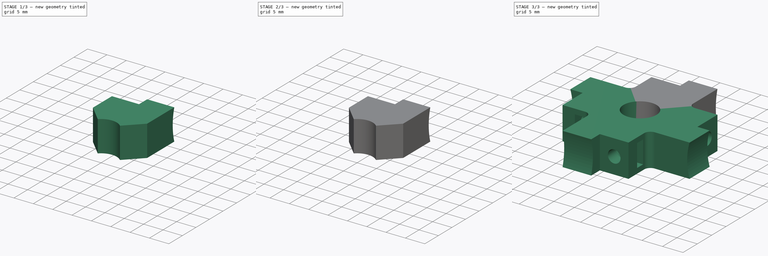
[diagram: build sequence overview — one tinted view per stage of 3, left to right]
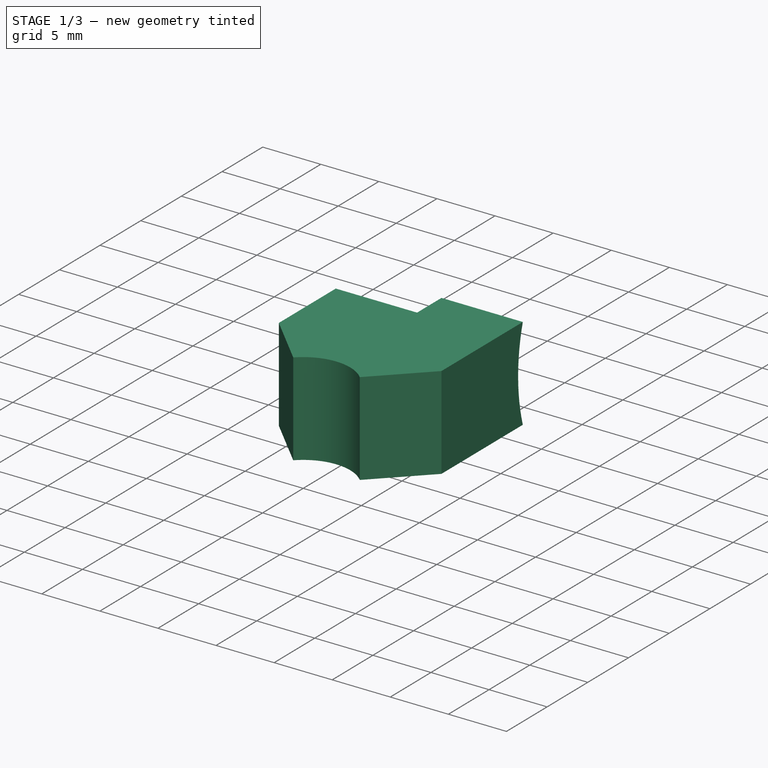
[diagram: stage 1 of 3 — iso view after this stage's code; geometry added in this stage tinted green]
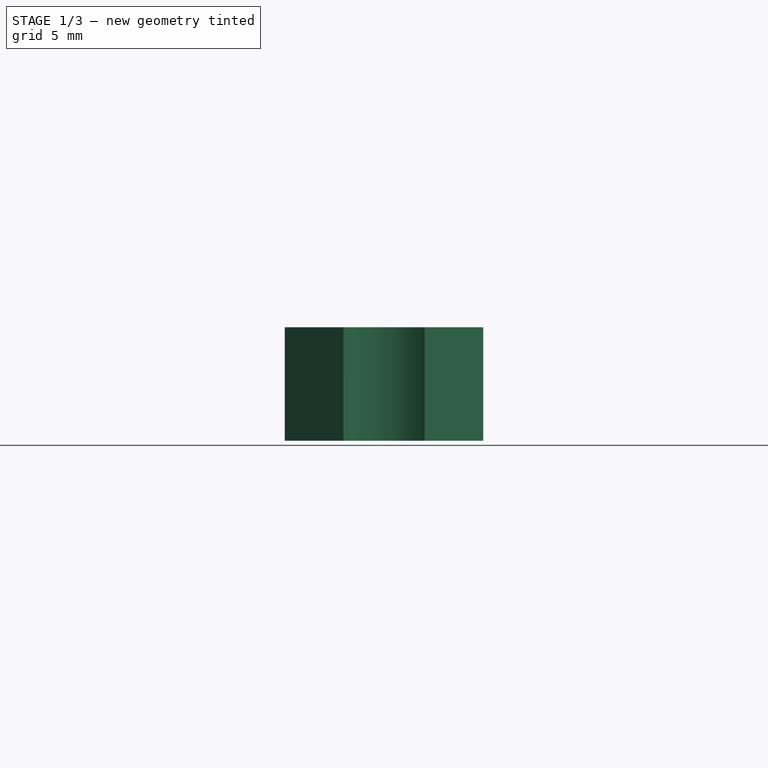
[diagram: stage 1 of 3 — front view after this stage's code; geometry added in this stage tinted green]
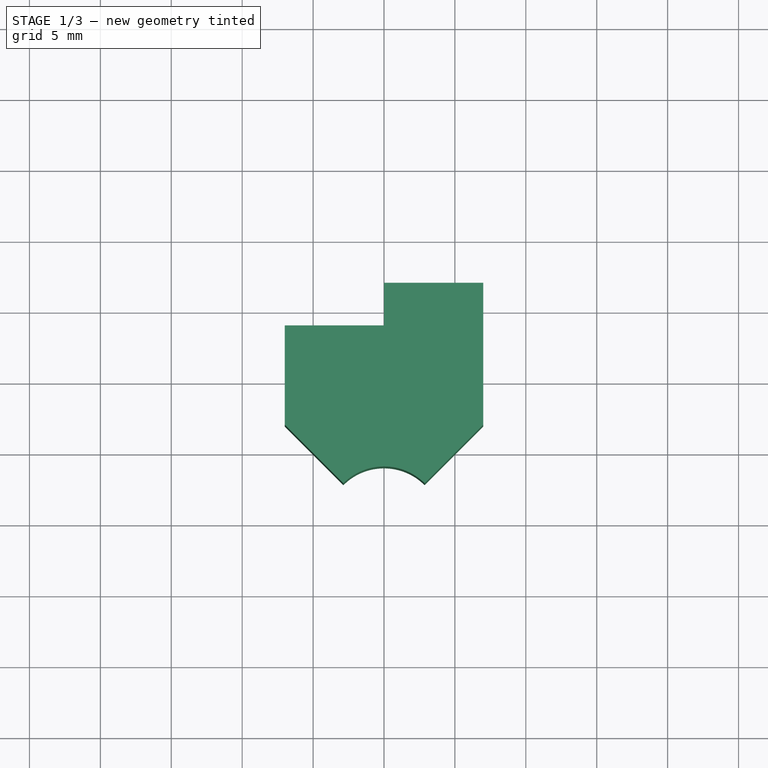
[diagram: stage 1 of 3 — top view after this stage's code; geometry added in this stage tinted green]
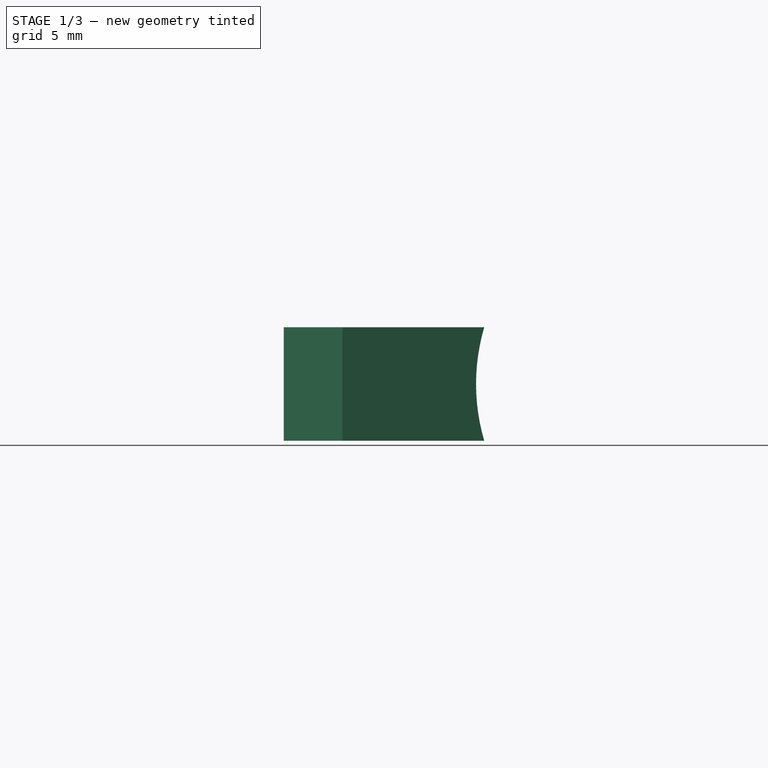
[diagram: stage 1 of 3 — right view after this stage's code; geometry added in this stage tinted green]
FCSTD DOCUMENT  (FreeCAD 0.16RUnknown)
Label: joint-base-x.010.1
License: All rights reserved
LicenseURL: http://en.wikipedia.org/wiki/All_rights_reserved
objects: Sketcher::SketchObject×4, Part::Feature×3, Part::Extrusion×2, PartDesign::Pocket×2, Part::Cut×1, Part::MultiFuse×1, Part::Fillet×1
note: 16 computed .brp shape members not serialized (recipe doc carries the construction recipe); baked Part::Feature solids carry a one-line shape summary decoded from their .brp

FEATURE [Sketcher::SketchObject] Sketch
  sketch-geometry (11):
    g0: ArcOfCircle CenterX=0 CenterY=0 CenterZ=0 NormalX=0 NormalY=0 NormalZ=1 Radius=4.05 StartAngle=0.785398 EndAngle=2.35619
    g1: ArcOfCircle [constr] CenterX=0 CenterY=0 CenterZ=0 NormalX=0 NormalY=0 NormalZ=1 Radius=4.05 StartAngle=2.35619 EndAngle=7.06858
    g2: LineSegment StartX=-7 StartY=7 StartZ=0 EndX=-7 EndY=14 EndZ=0
    g3: LineSegment StartX=-7 StartY=14 StartZ=0 EndX=0 EndY=14 EndZ=0
    g4: LineSegment StartX=0 StartY=14 StartZ=0 EndX=0 EndY=17 EndZ=0
    g5: LineSegment StartX=0 StartY=17 StartZ=0 EndX=7 EndY=17 EndZ=0
    g6: LineSegment StartX=7 StartY=17 StartZ=0 EndX=7 EndY=7 EndZ=0
    g7: LineSegment StartX=7 StartY=7 StartZ=0 EndX=2.86378 EndY=2.86378 EndZ=0
    g8: LineSegment StartX=-7 StartY=7 StartZ=0 EndX=-2.86378 EndY=2.86378 EndZ=0
    g9: LineSegment [constr] StartX=-2.86378 StartY=2.86378 StartZ=0 EndX=2.86378 EndY=2.86378 EndZ=0
    g10: LineSegment [constr] StartX=-2.86378 StartY=2.86378 StartZ=0 EndX=0 EndY=0 EndZ=0
  constraints (31):
    c: Coincident(g0,g1)
    c: Coincident(g0,g-1)
    c: Coincident(g0,g1)
    c: Coincident(g0,g1)
    c: Radius(g1) = 4.05
    c: Vertical(g2)
    c: Coincident(g2,g3)
    c: Horizontal(g3)
    c: Coincident(g3,g4)
    c: Vertical(g4)
    c: Coincident(g4,g5)
    c: Horizontal(g5)
    c: Coincident(g5,g6)
    c: Vertical(g6)
    c: Coincident(g6,g7)
    c: Coincident(g0,g8)
    c: Coincident(g2,g8)
    c: Coincident(g0,g7)
    c: Equal(g3,g5)
    c: DistanceY(g4,g4) = 3
    c: DistanceX(g5,g5) = 7
    c: Horizontal(g9)
    c: Coincident(g0,g9)
    c: Coincident(g0,g9)
    c: Angle(g8,g2) = 2.35619
    c: Angle(g6,g7) = 2.35619
    c: Equal(g7,g8)
    c: DistanceY(g6,g6) = 10
    c: Coincident(g0,g10)
    c: Coincident(g0,g10)
    c: Parallel(g10,g8)
FEATURE [Part::Extrusion] Extrude
  Base = -> Sketch
  Dir = (0,0,8)
  Solid = true
FEATURE [Sketcher::SketchObject] Sketch001
  ExternalGeometry = -> [Extrude]
  Placement = pos=(0,0,0) rot=(0.57735,-0.57735,-0.57735;2.0944rad)
  Support = -> Extrude [Face3]
  sketch-geometry (2):
    g0: LineSegment StartX=-17 StartY=8 StartZ=0 EndX=-17 EndY=0 EndZ=0
    g1: ArcOfCircle CenterX=-30.5729 CenterY=4 CenterZ=0 NormalX=0 NormalY=0 NormalZ=1 Radius=14.15 StartAngle=5.99659 EndAngle=6.56978
  constraints (6):
    c: Vertical(g0)
    c: Coincident(g0,g1)
    c: Coincident(g0,g-3)
    c: Coincident(g0,g1)
    c: Coincident(g0,g-3)
    c: Radius(g1) = 14.15
FEATURE [PartDesign::Pocket] Pocket
  Length = 5
  Sketch = -> Sketch001
  Type = 1
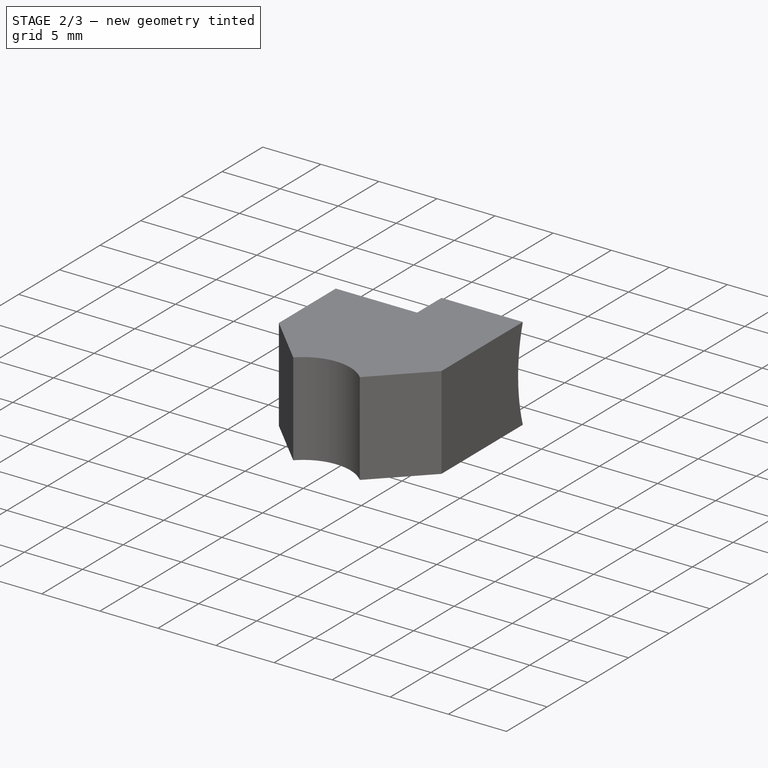
[diagram: stage 2 of 3 — iso view after this stage's code; geometry added in this stage tinted green]
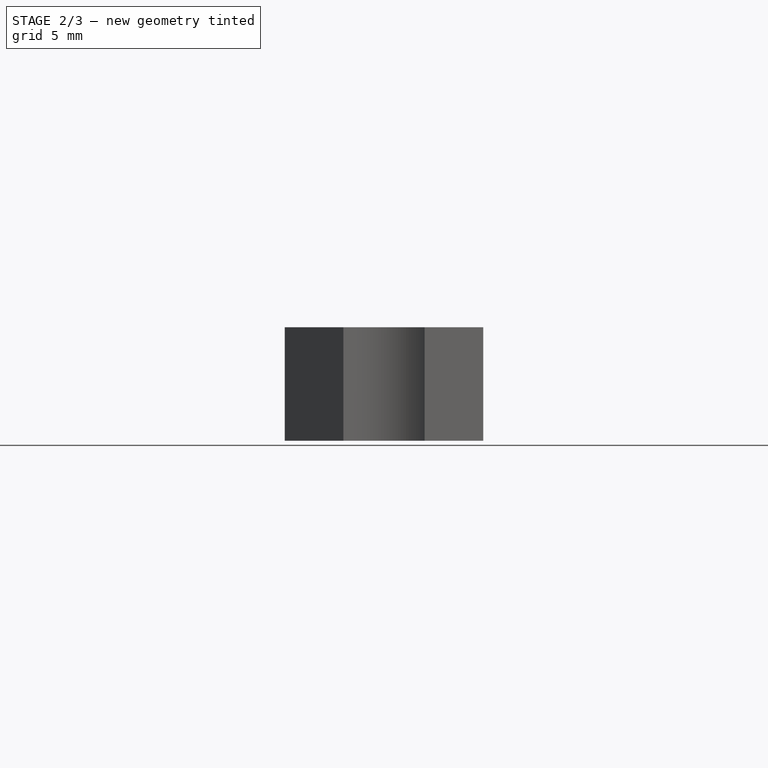
[diagram: stage 2 of 3 — front view after this stage's code; geometry added in this stage tinted green]
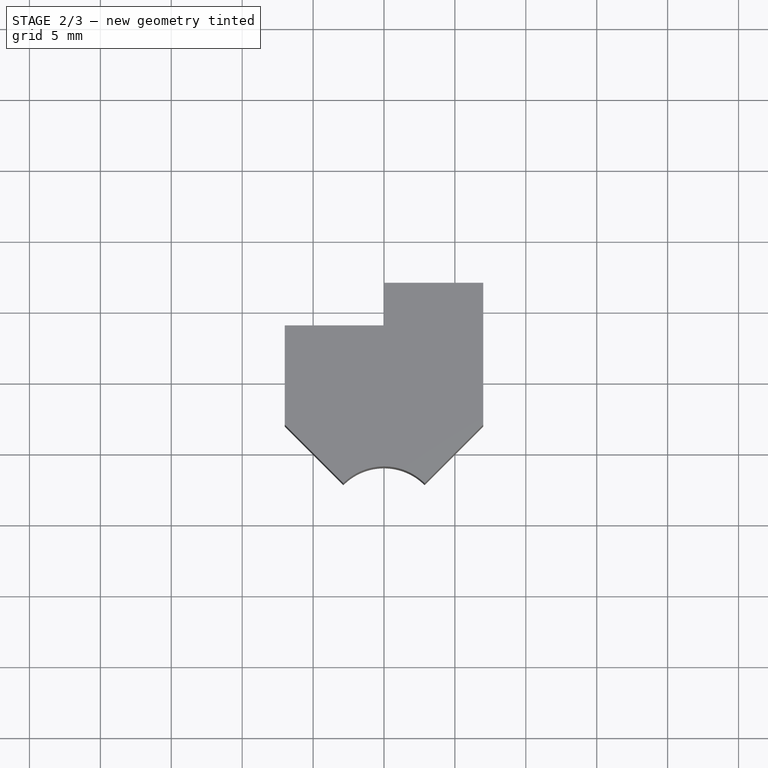
[diagram: stage 2 of 3 — top view after this stage's code; geometry added in this stage tinted green]
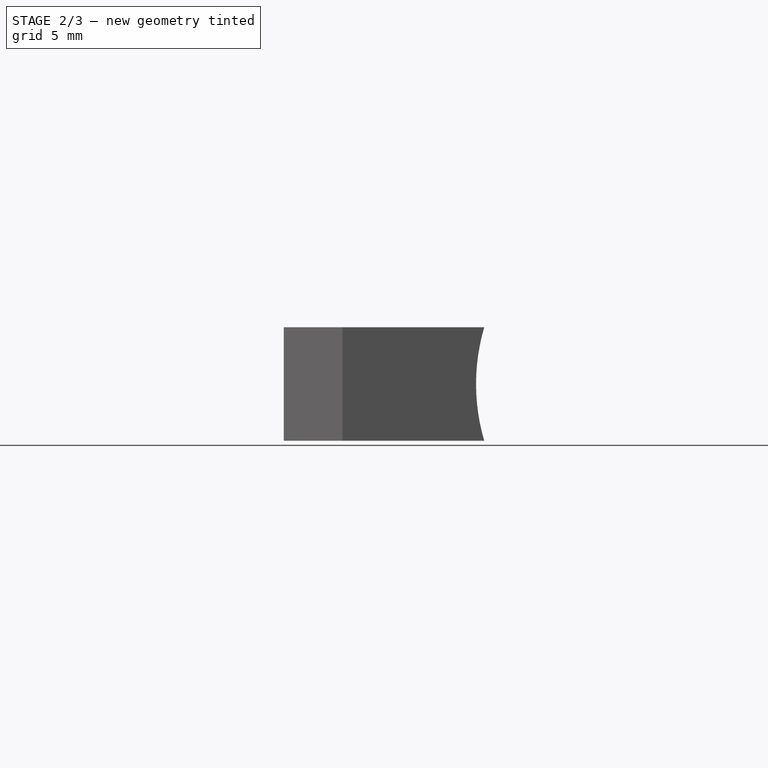
[diagram: stage 2 of 3 — right view after this stage's code; geometry added in this stage tinted green]
FEATURE [Sketcher::SketchObject] Sketch002
  ExternalGeometry = -> [Pocket]
  Placement = pos=(0,14,0) rot=(0,0.707107,0.707107;3.14159rad)
  Support = -> Pocket [Face3]
  sketch-geometry (3):
    g0: LineSegment [constr] StartX=0 StartY=0 StartZ=0 EndX=3.5 EndY=4 EndZ=0
    g1: LineSegment [constr] StartX=3.5 StartY=4 StartZ=0 EndX=7 EndY=8 EndZ=0
    g2: Circle CenterX=3.5 CenterY=4 CenterZ=0 NormalX=0 NormalY=0 NormalZ=1 Radius=1.55
  constraints (7):
    c: Coincident(g0,g1)
    c: Coincident(g1,g-3)
    c: Coincident(g0,g-1)
    c: Equal(g0,g1)
    c: Parallel(g0,g1)
    c: Coincident(g0,g2)
    c: Radius(g2) = 1.55
FEATURE [PartDesign::Pocket] Pocket001
  Length = 7
  Sketch = -> Sketch002
  Type = 0
FEATURE [Sketcher::SketchObject] Sketch003
  ExternalGeometry = -> [Pocket001]
  Placement = pos=(0,14,0) rot=(0,0.707107,0.707107;3.14159rad)
  Support = -> Pocket001 [Face3]
  sketch-geometry (6):
    g0: LineSegment [constr] StartX=3.5 StartY=4 StartZ=0 EndX=0.324574 EndY=4 EndZ=0
    g1: LineSegment StartX=0.324574 StartY=4 StartZ=0 EndX=1.91229 EndY=6.75 EndZ=0
    g2: LineSegment StartX=1.91229 StartY=6.75 StartZ=0 EndX=7 EndY=6.75 EndZ=0
    g3: LineSegment StartX=7 StartY=6.75 StartZ=0 EndX=7 EndY=1.25 EndZ=0
    g4: LineSegment StartX=7 StartY=1.25 StartZ=0 EndX=1.91229 EndY=1.25 EndZ=0
    g5: LineSegment StartX=1.91229 StartY=1.25 StartZ=0 EndX=0.324574 EndY=4 EndZ=0
  constraints (17):
    c: Horizontal(g0)
    c: Coincident(g0,g1)
    c: Coincident(g1,g2)
    c: Horizontal(g2)
    c: Coincident(g2,g3)
    c: Vertical(g3)
    c: Coincident(g3,g4)
    c: Horizontal(g4)
    c: Coincident(g4,g5)
    c: Coincident(g0,g5)
    c: Coincident(g0,g-3)
    c: Equal(g1,g0)
    c: Equal(g0,g5)
    c: Equal(g4,g2)
    c: DistanceY(g3,g3) = 5.5
    c: Angle(g5,g1) = 2.0944
    c: PointOnObject(g2,g-4)
FEATURE [Part::Extrusion] Extrude001
  Base = -> Sketch003
  Dir = (0,-2.1,0)
  Placement = pos=(0,-3,0) rot=(0,0,1;0rad)
  Solid = true
FEATURE [Part::Cut] Cut
  Base = -> Pocket001
  Tool = -> Extrude001
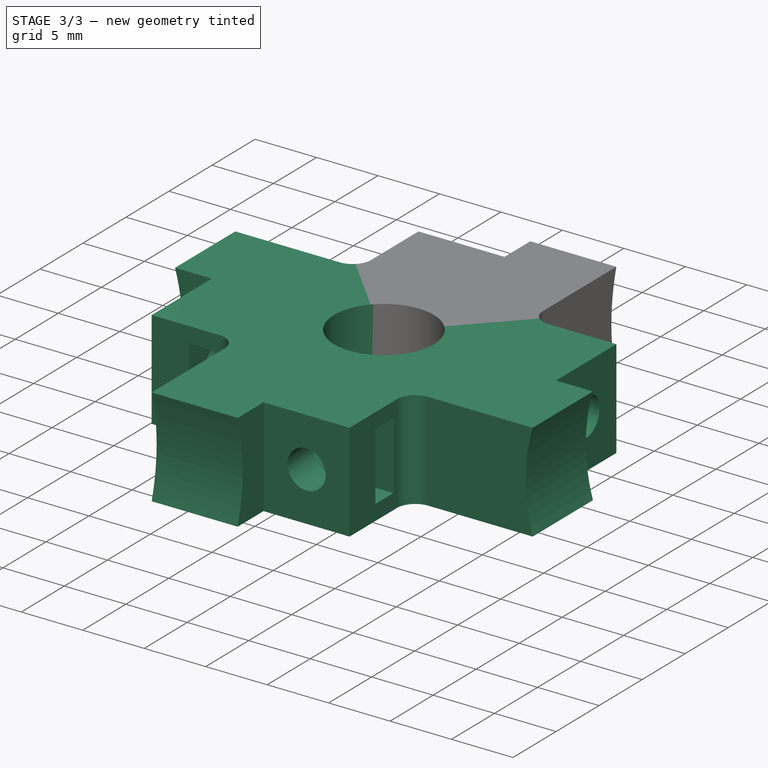
[diagram: stage 3 of 3 — iso view after this stage's code; geometry added in this stage tinted green]
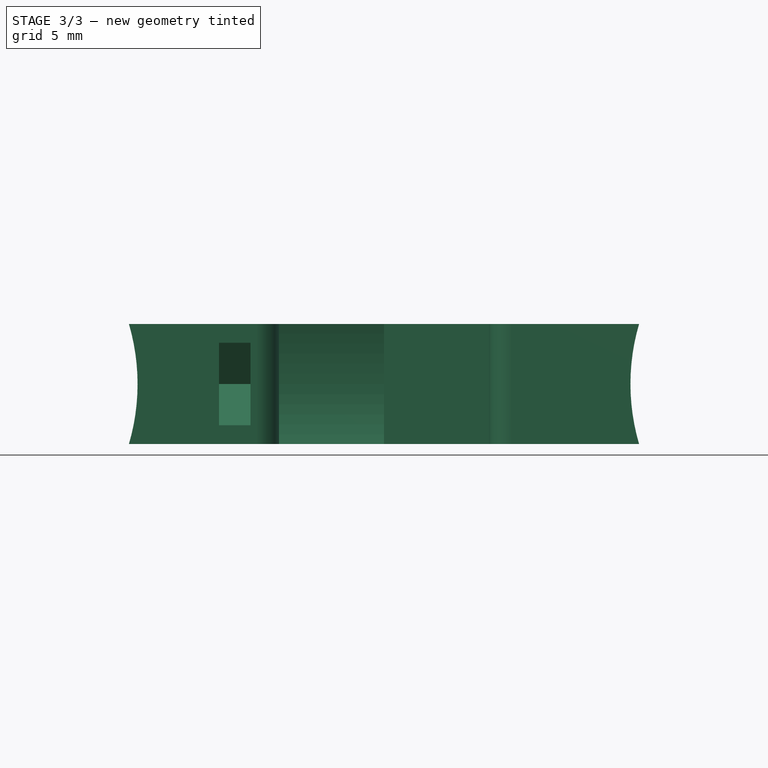
[diagram: stage 3 of 3 — front view after this stage's code; geometry added in this stage tinted green]
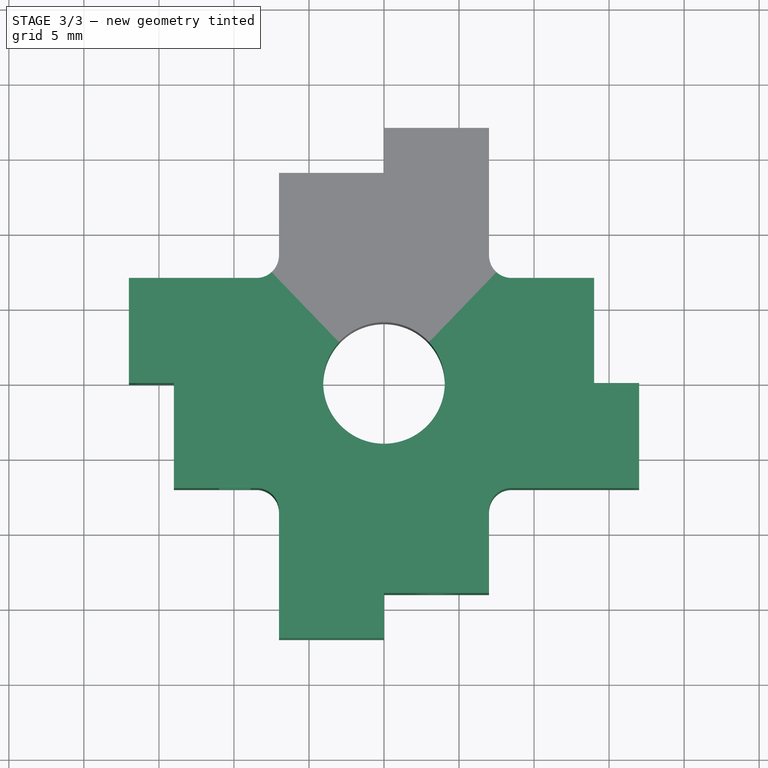
[diagram: stage 3 of 3 — top view after this stage's code; geometry added in this stage tinted green]
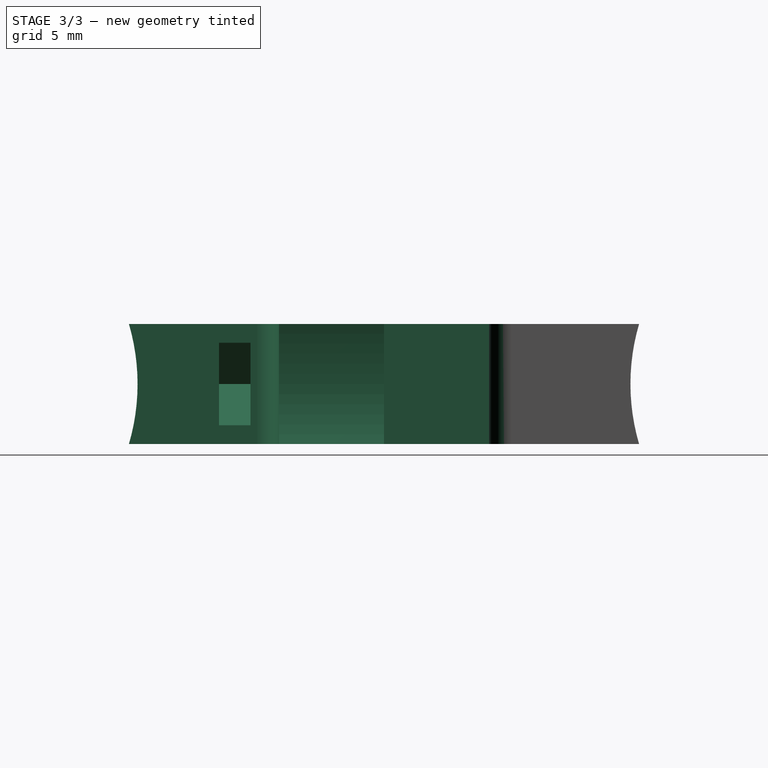
[diagram: stage 3 of 3 — right view after this stage's code; geometry added in this stage tinted green]
FEATURE [Part::Feature] Cut001
  Placement = pos=(0,0,0) rot=(0,0,1;1.5708rad)
  shape: bbox 14.14 x 14 x 8 mm, 19 faces (baked)
FEATURE [Part::Feature] Cut002
  Placement = pos=(0,0,0) rot=(0,0,1;3.14159rad)
  shape: bbox 14 x 14.14 x 8 mm, 19 faces (baked)
FEATURE [Part::Feature] Cut003
  Placement = pos=(0,0,0) rot=(0,0,1;4.71239rad)
  shape: bbox 14.14 x 14 x 8 mm, 19 faces (baked)
FEATURE [Part::MultiFuse] Fusion
  Shapes = -> [Cut,Cut003,Cut001,Cut002]
FEATURE [Part::Fillet] Fillet
  Base = -> Fusion
  Edges = 4 edges r=1.5: [Edge6,Edge58,Edge76,Edge101]
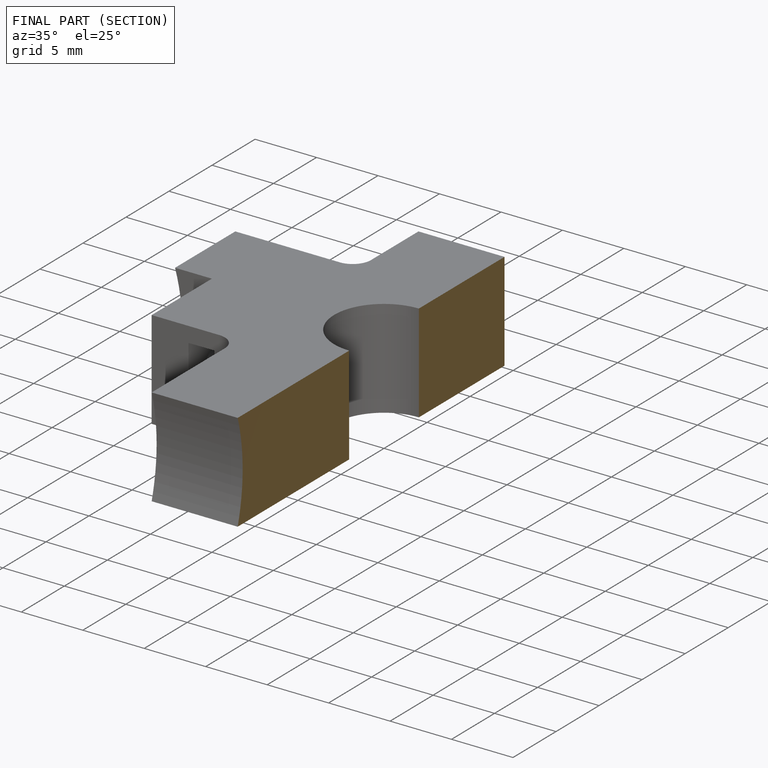
[diagram: finished part — half-section view (interior)]
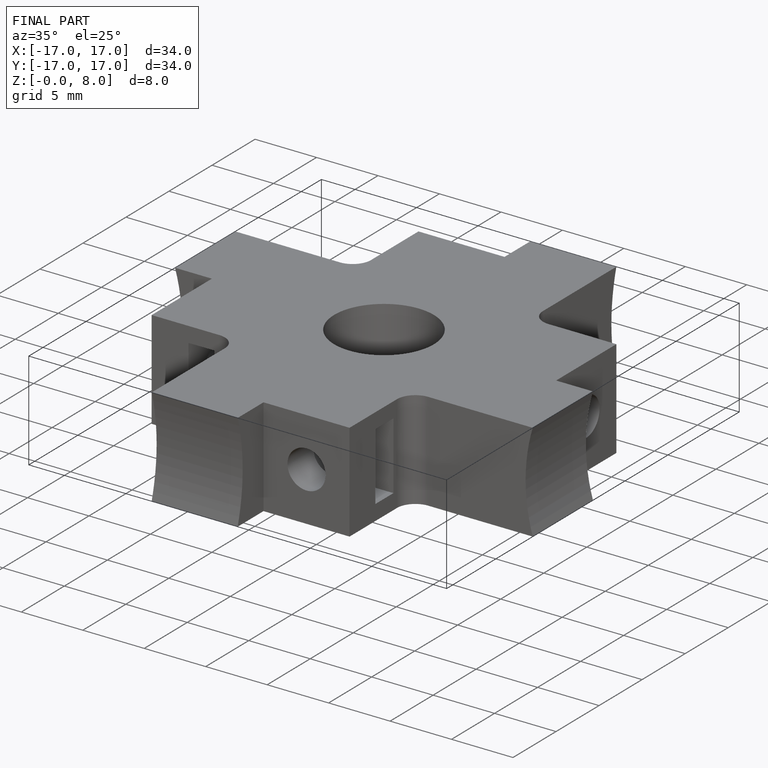
[diagram: finished part — iso view with bounding-box wireframe]
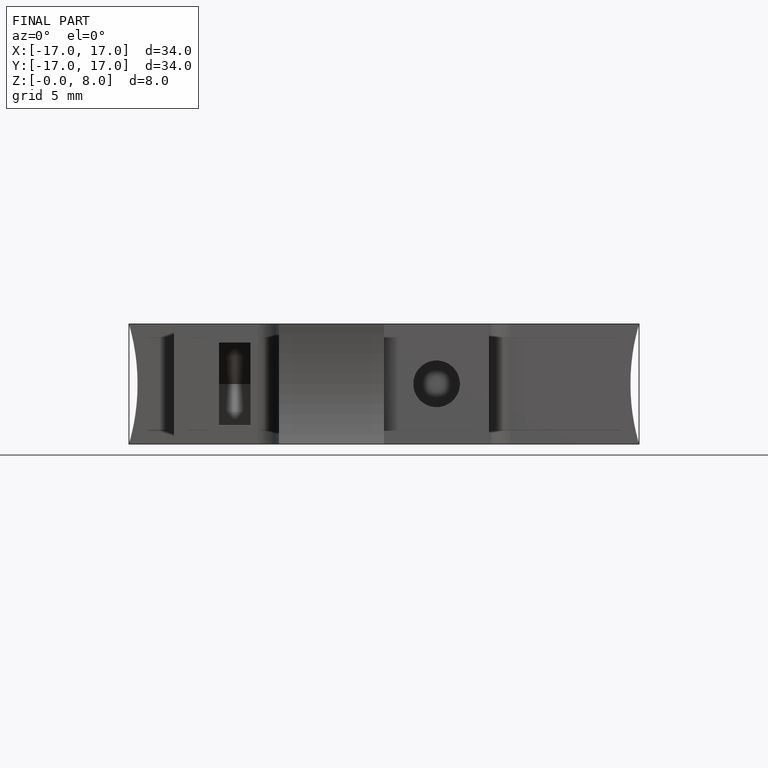
[diagram: finished part — front view with bounding-box wireframe]
